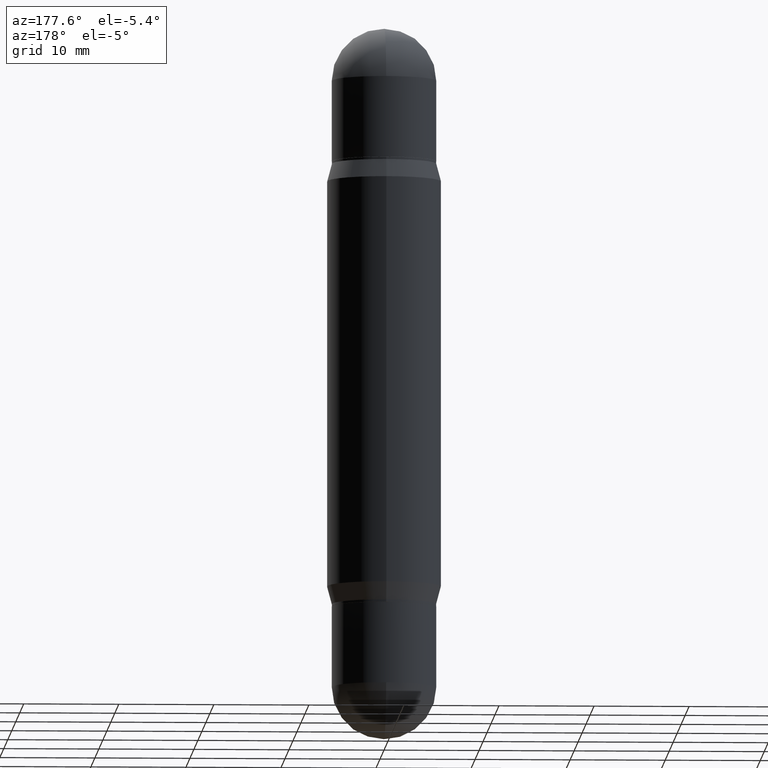
[diagram: clean part render]
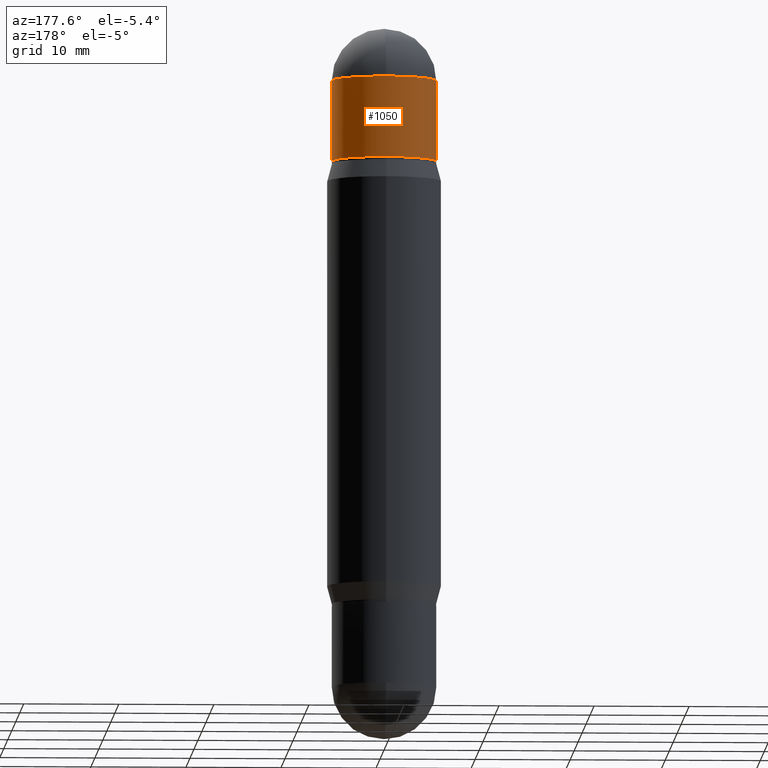
[diagram: same view with one face highlighted and labeled with its STEP entity id]
A machine part, auxiliary view. The second image highlights one B-rep face of the part: STEP entity #1050.
In plain terms, the highlighted cylindrical surface (partial cylindrical patch) has radius 5.5004 mm, axis along (-0, -0, -1).
Its self-contained STEP definition (entity closure, byte-faithful):
#2 = CARTESIAN_POINT ( 'NONE',  ( 0.2165500000000001035, -2.865417820986029909E-15, -0.2165500000000001868 ) ) ;
#37 = CARTESIAN_POINT ( 'NONE',  ( -0.2165500000000001035, 1.323835882843576813E-16, -0.2165500000000001868 ) ) ;
#47 = CARTESIAN_POINT ( 'NONE',  ( 5.873037884934223228E-29, -1.935483743820134825E-15, -0.5512000000000001343 ) ) ;
#77 = CARTESIAN_POINT ( 'NONE',  ( 1.512160567853029651E-15, 0.2165499999999994929, -0.2165500000000009362 ) ) ;
#88 = CYLINDRICAL_SURFACE ( 'NONE', #957, 0.2165500000000001035 ) ;
#93 = CARTESIAN_POINT ( 'NONE',  ( 0.000000000000000000, -1.029212584771408642E-14, -2.952799999999999869 ) ) ;
#192 = LINE ( 'NONE', #714, #956 ) ;
#196 = AXIS2_PLACEMENT_3D ( 'NONE', #300, #404, #771 ) ;
#229 = CARTESIAN_POINT ( 'NONE',  ( 6.691414020924079206E-29, -7.710307624460063053E-16, -0.2165500000000001868 ) ) ;
#300 = CARTESIAN_POINT ( 'NONE',  ( 6.691414020924079206E-29, -7.710307624460063053E-16, -0.2165500000000001868 ) ) ;
#301 = ORIENTED_EDGE ( 'NONE', *, *, #333, .T. ) ;
#313 = DIRECTION ( 'NONE',  ( 1.000000000000000000, -6.982962677686266711E-15, 0.000000000000000000 ) ) ;
#333 = EDGE_CURVE ( 'NONE', #470, #897, #836, .T. ) ;
#341 = ORIENTED_EDGE ( 'NONE', *, *, #429, .F. ) ;
#362 = VERTEX_POINT ( 'NONE', #649 ) ;
#363 = FACE_OUTER_BOUND ( 'NONE', #435, .T. ) ;
#376 = DIRECTION ( 'NONE',  ( -2.445468806185136597E-29, -3.479614466977828254E-15, -1.000000000000000000 ) ) ;
#404 = DIRECTION ( 'NONE',  ( 2.445468806185136597E-29, 3.479614466977828254E-15, 1.000000000000000000 ) ) ;
#429 = EDGE_CURVE ( 'NONE', #470, #535, #746, .T. ) ;
#435 = EDGE_LOOP ( 'NONE', ( #878, #642, #341, #301, #651 ) ) ;
#458 = VECTOR ( 'NONE', #1093, 39.37007874015748143 ) ;
#470 = VERTEX_POINT ( 'NONE', #2 ) ;
#512 = CIRCLE ( 'NONE', #527, 0.2165500000000001035 ) ;
#527 = AXIS2_PLACEMENT_3D ( 'NONE', #229, #576, #1070 ) ;
#535 = VERTEX_POINT ( 'NONE', #77 ) ;
#576 = DIRECTION ( 'NONE',  ( 2.445468806185136597E-29, 3.479614466977828254E-15, 1.000000000000000000 ) ) ;
#642 = ORIENTED_EDGE ( 'NONE', *, *, #818, .F. ) ;
#648 = DIRECTION ( 'NONE',  ( 2.445468806185136597E-29, 3.479614466977828254E-15, 1.000000000000000000 ) ) ;
#649 = CARTESIAN_POINT ( 'NONE',  ( -0.2165500000000000758, 1.323835882843561036E-16, -0.5512000000000001343 ) ) ;
#651 = ORIENTED_EDGE ( 'NONE', *, *, #695, .T. ) ;
#679 = EDGE_CURVE ( 'NONE', #698, #362, #192, .T. ) ;
#695 = EDGE_CURVE ( 'NONE', #897, #362, #903, .T. ) ;
#698 = VERTEX_POINT ( 'NONE', #37 ) ;
#714 = CARTESIAN_POINT ( 'NONE',  ( -0.2165500000000001035, -8.806485006296660292E-15, -2.952799999999999869 ) ) ;
#743 = CARTESIAN_POINT ( 'NONE',  ( 0.2165500000000001035, -1.180428641556704882E-14, -2.952799999999999869 ) ) ;
#746 = CIRCLE ( 'NONE', #196, 0.2165500000000001035 ) ;
#747 = AXIS2_PLACEMENT_3D ( 'NONE', #47, #648, #313 ) ;
#771 = DIRECTION ( 'NONE',  ( 1.000000000000000000, -6.982962677686265922E-15, 0.000000000000000000 ) ) ;
#818 = EDGE_CURVE ( 'NONE', #535, #698, #512, .T. ) ;
#836 = LINE ( 'NONE', #743, #458 ) ;
#878 = ORIENTED_EDGE ( 'NONE', *, *, #679, .F. ) ;
#884 = DIRECTION ( 'NONE',  ( -2.445468806185136877E-29, -3.479614466977828648E-15, -1.000000000000000000 ) ) ;
#897 = VERTEX_POINT ( 'NONE', #1019 ) ;
#903 = CIRCLE ( 'NONE', #747, 0.2165500000000000758 ) ;
#956 = VECTOR ( 'NONE', #884, 39.37007874015748143 ) ;
#957 = AXIS2_PLACEMENT_3D ( 'NONE', #93, #376, #1035 ) ;
#1019 = CARTESIAN_POINT ( 'NONE',  ( 0.2165500000000000758, -3.447644311673096437E-15, -0.5512000000000001343 ) ) ;
#1035 = DIRECTION ( 'NONE',  ( 1.000000000000000000, -6.982962677686270655E-15, 0.000000000000000000 ) ) ;
#1050 = ADVANCED_FACE ( 'NONE', ( #363 ), #88, .T. ) ;
#1070 = DIRECTION ( 'NONE',  ( 1.000000000000000000, -6.982962677686265922E-15, 0.000000000000000000 ) ) ;
#1093 = DIRECTION ( 'NONE',  ( -2.445468806185136877E-29, -3.479614466977828648E-15, -1.000000000000000000 ) ) ;